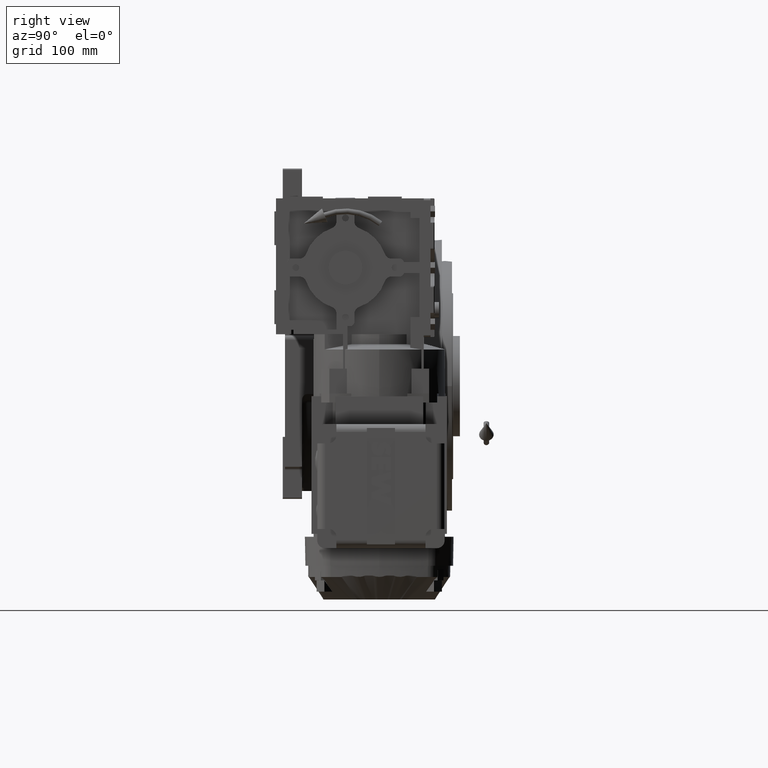
[diagram: clean part render]
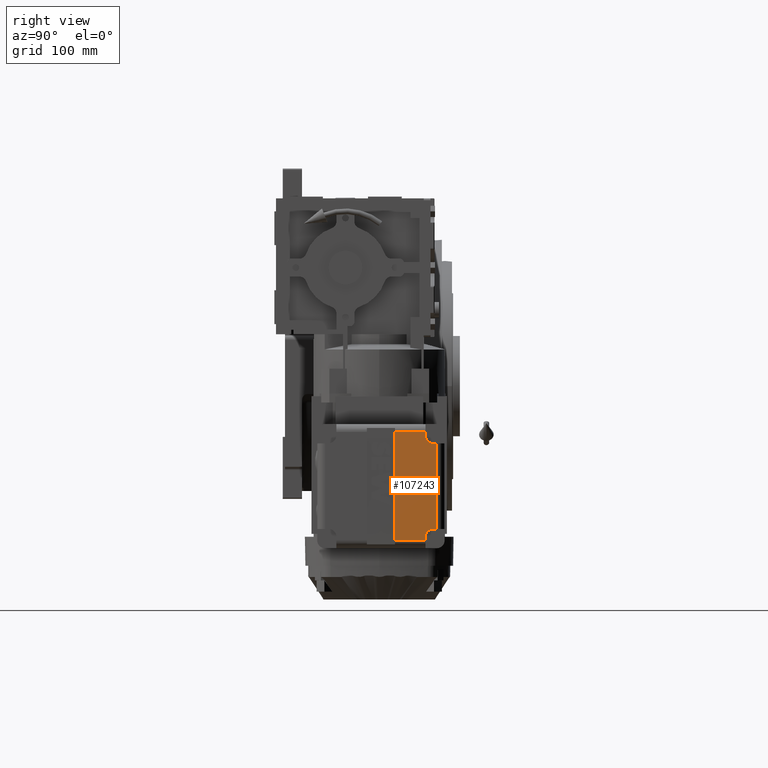
[diagram: same view with one face highlighted and labeled with its STEP entity id]
A machine part, right view. The second image highlights one B-rep face of the part: STEP entity #107243.
In plain terms, the highlighted planar face has unit normal (1, 0, 0).
Its self-contained STEP definition (entity closure, byte-faithful):
#841 = CARTESIAN_POINT ( 'NONE',  ( 145.6999999999988802, -118.9999999999999716, 43.99999999999888445 ) ) ;
#4064 = CARTESIAN_POINT ( 'NONE',  ( 231.6999999999978002, -118.9999999999999716, 77.99999999999778311 ) ) ;
#4219 = AXIS2_PLACEMENT_3D ( 'NONE', #20392, #55233, #64606 ) ;
#5504 = VERTEX_POINT ( 'NONE', #49799 ) ;
#6259 = PLANE ( 'NONE',  #88853 ) ;
#9163 = CARTESIAN_POINT ( 'NONE',  ( 231.6999999999999602, -118.9999999999999716, 80.99999999999778311 ) ) ;
#10006 = CARTESIAN_POINT ( 'NONE',  ( 168.4499999999999886, -118.9999999999999716, 70.99999999999832312 ) ) ;
#17763 = CARTESIAN_POINT ( 'NONE',  ( 231.6999999999999602, -118.9999999999999716, 57.49999999999778311 ) ) ;
#17986 = CARTESIAN_POINT ( 'NONE',  ( 241.6999999999978002, -118.9999999999999716, 43.99999999999777600 ) ) ;
#20392 = CARTESIAN_POINT ( 'NONE',  ( 148.6999999999988802, -118.9999999999999716, 77.99999999999833733 ) ) ;
#24562 = VECTOR ( 'NONE', #43736, 1000.000000000000000 ) ;
#26647 = ORIENTED_EDGE ( 'NONE', *, *, #68219, .T. ) ;
#26821 = VERTEX_POINT ( 'NONE', #4064 ) ;
#26828 = EDGE_CURVE ( 'NONE', #92385, #95810, #79788, .T. ) ;
#28464 = EDGE_CURVE ( 'NONE', #56567, #92385, #49488, .T. ) ;
#31132 = FACE_OUTER_BOUND ( 'NONE', #94118, .T. ) ;
#33072 = CARTESIAN_POINT ( 'NONE',  ( 238.6999999999978002, -118.9999999999999716, 77.99999999999778311 ) ) ;
#34893 = VECTOR ( 'NONE', #42007, 1000.000000000000000 ) ;
#36587 = ORIENTED_EDGE ( 'NONE', *, *, #61854, .T. ) ;
#37235 = DIRECTION ( 'NONE',  ( -8.881784197001252323E-15, 6.640859809432791321E-48, 1.000000000000000000 ) ) ;
#38011 = ORIENTED_EDGE ( 'NONE', *, *, #92746, .T. ) ;
#38315 = CARTESIAN_POINT ( 'NONE',  ( 148.6999999999999886, -118.9999999999999716, 70.99999999999832312 ) ) ;
#39612 = VECTOR ( 'NONE', #45409, 1000.000000000000000 ) ;
#41038 = DIRECTION ( 'NONE',  ( 8.881784197001252323E-15, -6.640859809432791321E-48, -1.000000000000000000 ) ) ;
#41589 = DIRECTION ( 'NONE',  ( -2.142138711528213229E-47, -1.000000000000000000, 6.640859809432600498E-48 ) ) ;
#42007 = DIRECTION ( 'NONE',  ( 8.881784197001252323E-15, -6.640859809432791321E-48, -1.000000000000000000 ) ) ;
#42655 = DIRECTION ( 'NONE',  ( -1.000000000000000000, -2.142138711528199616E-47, 8.881784197001252323E-15 ) ) ;
#43736 = DIRECTION ( 'NONE',  ( -8.881784197001252323E-15, 6.640859809432791321E-48, 1.000000000000000000 ) ) ;
#45409 = DIRECTION ( 'NONE',  ( -8.881784197001252323E-15, 6.640859809432791321E-48, 1.000000000000000000 ) ) ;
#45608 = ORIENTED_EDGE ( 'NONE', *, *, #91934, .T. ) ;
#46252 = VERTEX_POINT ( 'NONE', #62134 ) ;
#48747 = VECTOR ( 'NONE', #89179, 1000.000000000000000 ) ;
#49069 = EDGE_CURVE ( 'NONE', #69221, #46252, #75822, .T. ) ;
#49488 = LINE ( 'NONE', #83206, #82148 ) ;
#49799 = CARTESIAN_POINT ( 'NONE',  ( 238.7000000000000171, -118.9999999999999716, 70.99999999999776890 ) ) ;
#52710 = ORIENTED_EDGE ( 'NONE', *, *, #26828, .T. ) ;
#53636 = CARTESIAN_POINT ( 'NONE',  ( 193.6999999999989086, -118.9999999999999716, 80.99999999999833733 ) ) ;
#54825 = CARTESIAN_POINT ( 'NONE',  ( 145.6999999999999886, -118.9999999999999716, 65.99999999999833733 ) ) ;
#55233 = DIRECTION ( 'NONE',  ( 2.142138711528201561E-47, 1.000000000000000000, 6.640859809432788890E-48 ) ) ;
#56567 = VERTEX_POINT ( 'NONE', #841 ) ;
#57093 = CARTESIAN_POINT ( 'NONE',  ( 218.9499999999999886, -118.9999999999999716, 70.99999999999776890 ) ) ;
#58115 = VERTEX_POINT ( 'NONE', #9163 ) ;
#60910 = LINE ( 'NONE', #17763, #24562 ) ;
#61854 = EDGE_CURVE ( 'NONE', #64985, #69221, #87245, .T. ) ;
#62134 = CARTESIAN_POINT ( 'NONE',  ( 145.6999999999999886, -118.9999999999999716, 70.99999999999832312 ) ) ;
#64606 = DIRECTION ( 'NONE',  ( 7.930164461608253340E-15, 0.000000000000000000, -1.000000000000000000 ) ) ;
#64985 = VERTEX_POINT ( 'NONE', #76176 ) ;
#66438 = LINE ( 'NONE', #57093, #48747 ) ;
#66792 = DIRECTION ( 'NONE',  ( 2.142138711528201561E-47, 1.000000000000000000, 6.640859809432788890E-48 ) ) ;
#68219 = EDGE_CURVE ( 'NONE', #26821, #58115, #60910, .T. ) ;
#69033 = VECTOR ( 'NONE', #37235, 1000.000000000000000 ) ;
#69221 = VERTEX_POINT ( 'NONE', #38315 ) ;
#69654 = DIRECTION ( 'NONE',  ( 1.000000000000000000, 2.142138711528199616E-47, -8.881784197001252323E-15 ) ) ;
#71217 = VECTOR ( 'NONE', #69654, 1000.000000000000000 ) ;
#73680 = CARTESIAN_POINT ( 'NONE',  ( 193.7000000000000171, -118.9999999999999716, 31.49999999999805667 ) ) ;
#74903 = DIRECTION ( 'NONE',  ( 1.000000000000000000, 2.142138711528199616E-47, -8.881784197001252323E-15 ) ) ;
#75822 = LINE ( 'NONE', #10006, #104896 ) ;
#76176 = CARTESIAN_POINT ( 'NONE',  ( 155.6999999999989086, -118.9999999999999716, 77.99999999999833733 ) ) ;
#77356 = LINE ( 'NONE', #91785, #34893 ) ;
#79788 = LINE ( 'NONE', #96377, #69033 ) ;
#81374 = CARTESIAN_POINT ( 'NONE',  ( 241.7000000000000171, -118.9999999999999716, 70.99999999999776890 ) ) ;
#81529 = CARTESIAN_POINT ( 'NONE',  ( 155.6999999999989086, -118.9999999999999716, 80.99999999999833733 ) ) ;
#82148 = VECTOR ( 'NONE', #74903, 1000.000000000000000 ) ;
#83142 = EDGE_CURVE ( 'NONE', #97301, #64985, #77356, .T. ) ;
#83206 = CARTESIAN_POINT ( 'NONE',  ( 193.6999999999999886, -118.9999999999999716, 43.99999999999805311 ) ) ;
#86001 = ORIENTED_EDGE ( 'NONE', *, *, #91722, .F. ) ;
#87189 = CIRCLE ( 'NONE', #101336, 7.000000000000006217 ) ;
#87245 = CIRCLE ( 'NONE', #4219, 7.000000000000006217 ) ;
#88853 = AXIS2_PLACEMENT_3D ( 'NONE', #73680, #41589, #41038 ) ;
#89179 = DIRECTION ( 'NONE',  ( -1.000000000000000000, -2.142138711528199616E-47, 8.881784197001252323E-15 ) ) ;
#91722 = EDGE_CURVE ( 'NONE', #97301, #58115, #95636, .T. ) ;
#91785 = CARTESIAN_POINT ( 'NONE',  ( 155.7000000000000171, -118.9999999999999716, 57.49999999999861444 ) ) ;
#91934 = EDGE_CURVE ( 'NONE', #5504, #26821, #87189, .T. ) ;
#92385 = VERTEX_POINT ( 'NONE', #17986 ) ;
#92746 = EDGE_CURVE ( 'NONE', #95810, #5504, #66438, .T. ) ;
#92791 = DIRECTION ( 'NONE',  ( -1.000000000000000000, 0.000000000000000000, 9.912705577010317464E-15 ) ) ;
#94118 = EDGE_LOOP ( 'NONE', ( #26647, #86001, #96056, #36587, #103615, #96693, #108567, #52710, #38011, #45608 ) ) ;
#95636 = LINE ( 'NONE', #53636, #71217 ) ;
#95810 = VERTEX_POINT ( 'NONE', #81374 ) ;
#96056 = ORIENTED_EDGE ( 'NONE', *, *, #83142, .T. ) ;
#96377 = CARTESIAN_POINT ( 'NONE',  ( 241.7000000000000171, -118.9999999999999716, 65.99999999999778311 ) ) ;
#96693 = ORIENTED_EDGE ( 'NONE', *, *, #108497, .F. ) ;
#96812 = LINE ( 'NONE', #54825, #39612 ) ;
#97301 = VERTEX_POINT ( 'NONE', #81529 ) ;
#101336 = AXIS2_PLACEMENT_3D ( 'NONE', #33072, #66792, #92791 ) ;
#103615 = ORIENTED_EDGE ( 'NONE', *, *, #49069, .T. ) ;
#104896 = VECTOR ( 'NONE', #42655, 1000.000000000000000 ) ;
#107243 = ADVANCED_FACE ( 'NONE', ( #31132 ), #6259, .T. ) ;
#108497 = EDGE_CURVE ( 'NONE', #56567, #46252, #96812, .T. ) ;
#108567 = ORIENTED_EDGE ( 'NONE', *, *, #28464, .T. ) ;